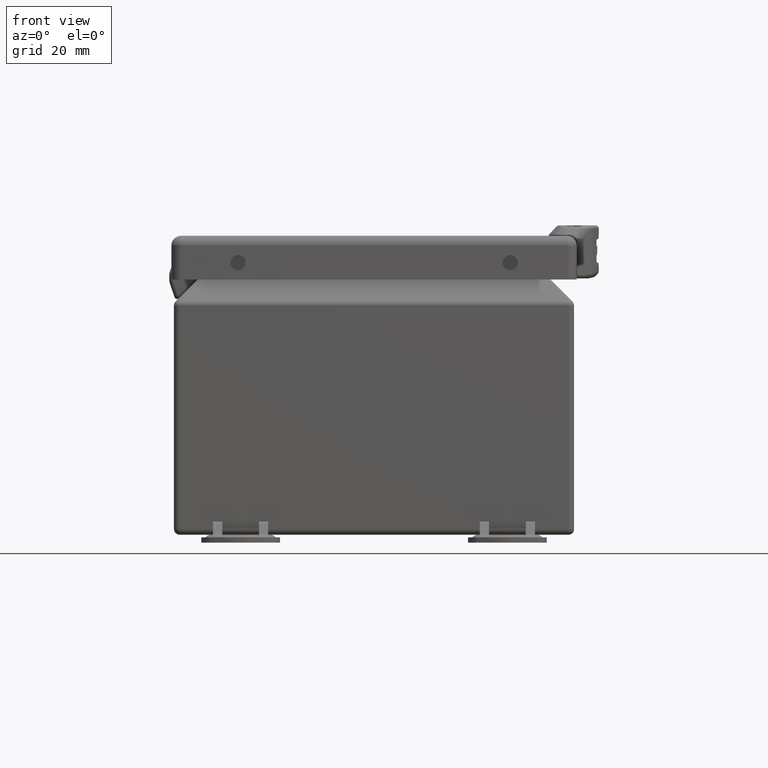
[diagram: clean part render]
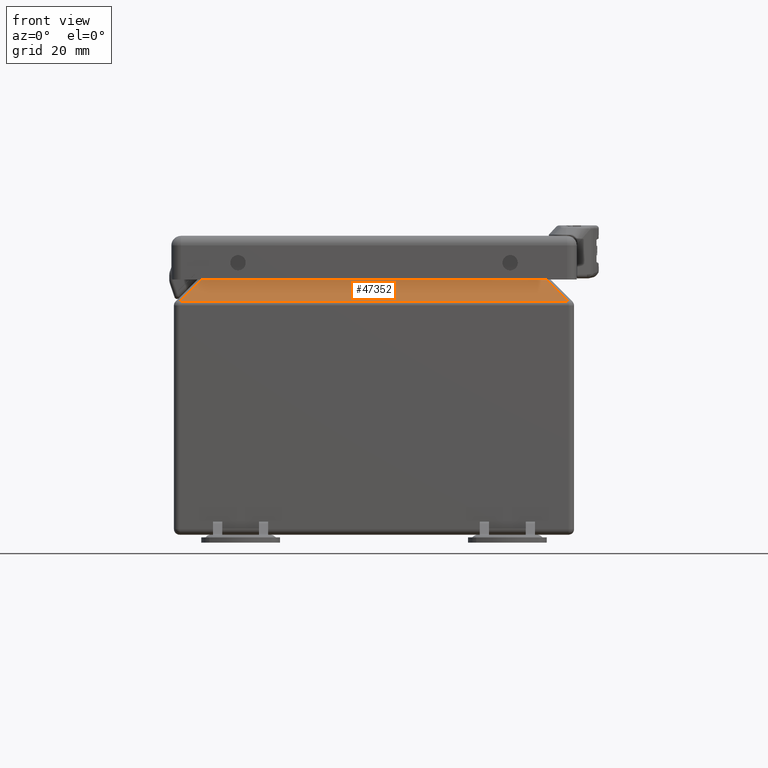
[diagram: same view with one face highlighted and labeled with its STEP entity id]
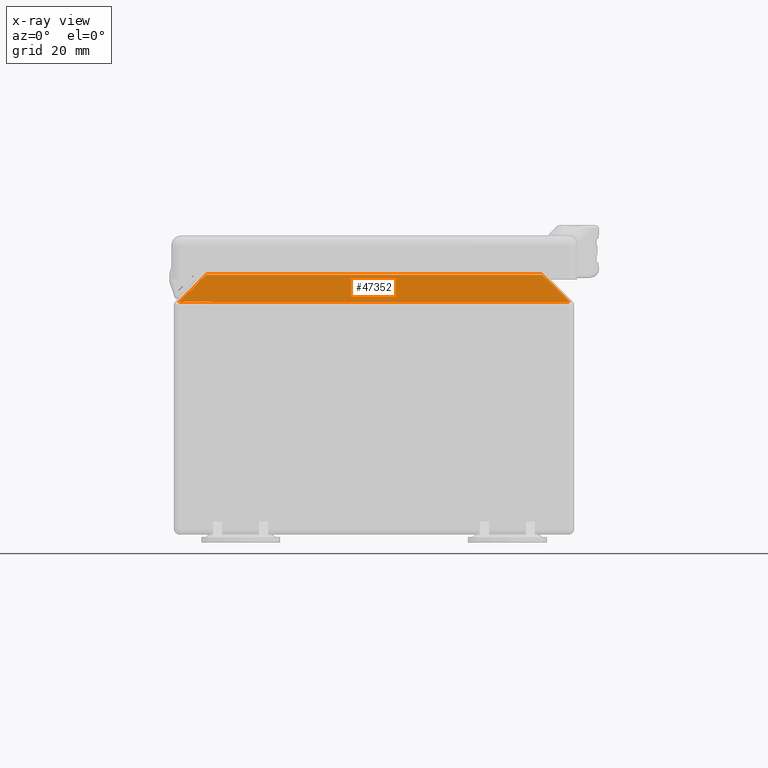
[diagram: x-ray of the same camera — body ghosted, the highlighted face saturated]
A machine part, front view. The second image highlights one B-rep face of the part: STEP entity #47352.
The next image is the same camera in x-ray: the body ghosted, the highlighted face saturated — about 0% of this face is hidden behind the body in this view.
In plain terms, the highlighted planar face has unit normal (-0, 0.7071, -0.7071).
Its self-contained STEP definition (entity closure, byte-faithful):
#2962=PLANE('',#51011);
#4183=FACE_OUTER_BOUND('',#7134,.T.);
#7134=EDGE_LOOP('',(#32412,#32413,#32414,#32415));
#10313=LINE('',#69073,#14341);
#10318=LINE('',#69109,#14346);
#10319=LINE('',#69201,#14347);
#10321=LINE('',#69211,#14349);
#14341=VECTOR('',#55878,0.393700787401575);
#14346=VECTOR('',#55899,0.393700787401575);
#14347=VECTOR('',#55904,0.393700787401575);
#14349=VECTOR('',#55910,0.393700787401575);
#20234=VERTEX_POINT('',#69070);
#20235=VERTEX_POINT('',#69072);
#20242=VERTEX_POINT('',#69103);
#20249=VERTEX_POINT('',#69200);
#24843=EDGE_CURVE('',#20234,#20235,#10313,.T.);
#24856=EDGE_CURVE('',#20235,#20242,#10318,.T.);
#24864=EDGE_CURVE('',#20242,#20249,#10319,.T.);
#24868=EDGE_CURVE('',#20249,#20234,#10321,.T.);
#32412=ORIENTED_EDGE('',*,*,#24856,.F.);
#32413=ORIENTED_EDGE('',*,*,#24843,.F.);
#32414=ORIENTED_EDGE('',*,*,#24868,.F.);
#32415=ORIENTED_EDGE('',*,*,#24864,.F.);
#47352=ADVANCED_FACE('',(#4183),#2962,.F.);
#51011=AXIS2_PLACEMENT_3D('',#69210,#55908,#55909);
#55878=DIRECTION('',(0.577350269189626,0.577350269189625,0.577350269189626));
#55899=DIRECTION('',(1.,-9.31003777739498E-17,-1.30166648339535E-16));
#55904=DIRECTION('',(0.577350269189626,-0.577350269189625,-0.577350269189626));
#55908=DIRECTION('center_axis',(-2.62098112702206E-17,0.707106781186548,
-0.707106781186547));
#55909=DIRECTION('ref_axis',(-1.,0.,3.70662705655852E-17));
#55910=DIRECTION('',(-1.,3.04444751532734E-17,6.75107457188586E-17));
#69070=CARTESIAN_POINT('',(-2.916,-2.97539696961967,3.49655202338033));
#69072=CARTESIAN_POINT('',(-2.51619742548605,-2.57559439510586,3.89635459789414));
#69073=CARTESIAN_POINT('',(-1.78384669807774,-1.84324366769755,4.62870532530245));
#69103=CARTESIAN_POINT('',(2.51619742548605,-2.57559439510586,3.89635459789414));
#69109=CARTESIAN_POINT('',(-2.48653211357214E-17,-2.57559439510586,3.89635459789414));
#69200=CARTESIAN_POINT('',(2.916,-2.97539696961967,3.49655202338033));
#69201=CARTESIAN_POINT('',(2.14127818120332,-2.20067515082313,4.27127384217687));
#69210=CARTESIAN_POINT('Origin',(-6.55643518479423E-17,-2.77227385695582,
3.69967513604418));
#69211=CARTESIAN_POINT('',(1.70728034347495E-17,-2.97539696961967,3.49655202338033));